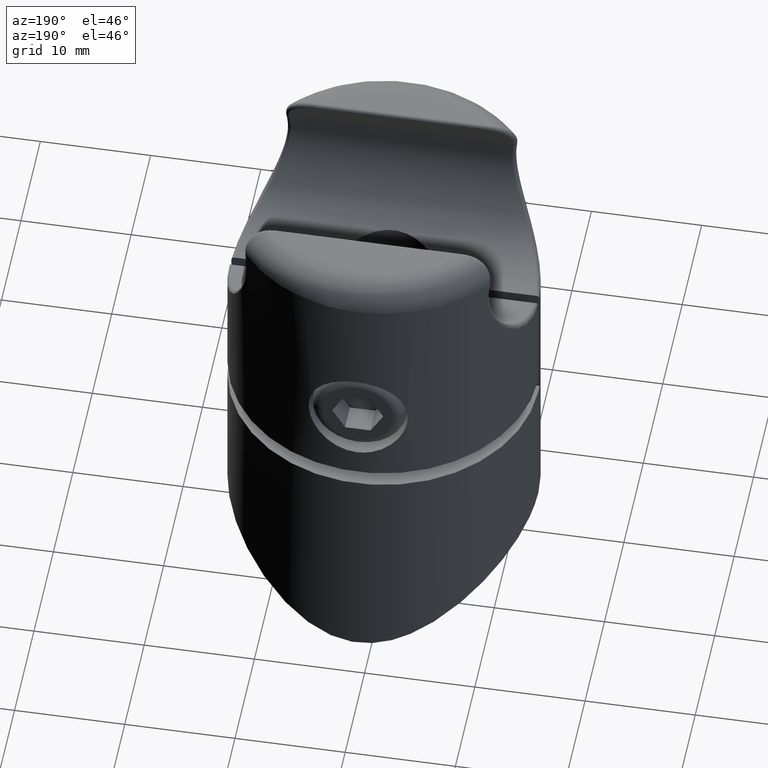
[diagram: clean part render]
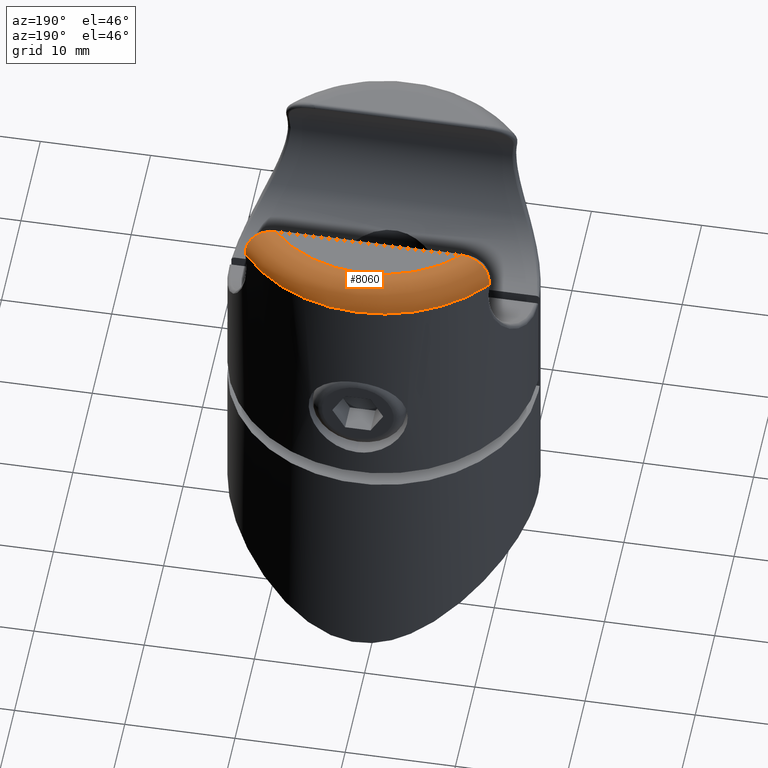
[diagram: same view with one face highlighted and labeled with its STEP entity id]
A machine part, auxiliary view. The second image highlights one B-rep face of the part: STEP entity #8060.
In plain terms, the highlighted toroidal blend (fillet) surface has major radius 11.5 mm and minor (blend) radius 2.5 mm.
Its self-contained STEP definition (entity closure, byte-faithful):
#166 = CARTESIAN_POINT ( 'NONE',  ( 10.79288158389544883, 9.065144072261254848, 10.32912315424133887 ) ) ;
#819 = ORIENTED_EDGE ( 'NONE', *, *, #4711, .F. ) ;
#1218 = CARTESIAN_POINT ( 'NONE',  ( 8.466754833147170700, 8.532291603080610187, 11.50000000000000000 ) ) ;
#1313 = CARTESIAN_POINT ( 'NONE',  ( -9.814852339705613105, 8.718293764479653873, 11.22984488960592131 ) ) ;
#1552 = ORIENTED_EDGE ( 'NONE', *, *, #13336, .T. ) ;
#1706 = CARTESIAN_POINT ( 'NONE',  ( 11.02121479887277822, 9.236315168775313111, 9.687781927357638878 ) ) ;
#1977 = VERTEX_POINT ( 'NONE', #5194 ) ;
#1982 = CARTESIAN_POINT ( 'NONE',  ( 8.466754833147170700, 8.532291603080610187, 11.50000000000000000 ) ) ;
#2039 = AXIS2_PLACEMENT_3D ( 'NONE', #15956, #7603, #9139 ) ;
#2909 = CARTESIAN_POINT ( 'NONE',  ( -11.03719900984944680, 9.362795017703506417, 9.000000000000001776 ) ) ;
#3309 = CARTESIAN_POINT ( 'NONE',  ( 11.03719900984943969, 9.362795017703513523, 9.000000000000001776 ) ) ;
#3370 = CARTESIAN_POINT ( 'NONE',  ( 9.649223412738290762, 8.682027269470601993, 11.30046964619617356 ) ) ;
#3417 = CARTESIAN_POINT ( 'NONE',  ( 0.000000000000000000, 0.7500000000000000000, 9.000000000000001776 ) ) ;
#3576 = CARTESIAN_POINT ( 'NONE',  ( 10.10656865037738150, 8.794226148229530082, 11.06606465844469511 ) ) ;
#3686 = DIRECTION ( 'NONE',  ( 1.000000000000000000, 0.000000000000000000, 0.000000000000000000 ) ) ;
#3907 = EDGE_CURVE ( 'NONE', #1977, #11324, #13389, .T. ) ;
#4699 = ORIENTED_EDGE ( 'NONE', *, *, #3907, .F. ) ;
#4711 = EDGE_CURVE ( 'NONE', #18486, #9964, #13640, .T. ) ;
#4721 = CARTESIAN_POINT ( 'NONE',  ( -10.60895538264376192, 8.974115481312297860, 10.60663100609582088 ) ) ;
#5120 = CARTESIAN_POINT ( 'NONE',  ( 9.158051503136826810, 8.593086780076012232, 11.45663955568875991 ) ) ;
#5194 = CARTESIAN_POINT ( 'NONE',  ( -11.03719900984944680, 9.362795017703506417, 9.000000000000001776 ) ) ;
#5195 = CARTESIAN_POINT ( 'NONE',  ( 10.24618007103731543, 8.837040630340815994, 10.96648265723516680 ) ) ;
#6205 = CARTESIAN_POINT ( 'NONE',  ( -10.87112798971560856, 9.112169288140984591, 10.17177599557661871 ) ) ;
#6343 = CARTESIAN_POINT ( 'NONE',  ( -8.466754833147170700, 8.532291603080610187, 11.50000000000000000 ) ) ;
#6528 = EDGE_CURVE ( 'NONE', #1977, #9964, #7760, .T. ) ;
#6853 = DIRECTION ( 'NONE',  ( 0.000000000000000000, 0.000000000000000000, 1.000000000000000000 ) ) ;
#7316 = FACE_OUTER_BOUND ( 'NONE', #20763, .T. ) ;
#7603 = DIRECTION ( 'NONE',  ( 0.000000000000000000, 0.000000000000000000, 1.000000000000000000 ) ) ;
#7760 = B_SPLINE_CURVE_WITH_KNOTS ( 'NONE', 3,
 ( #2909, #20466, #10889, #11084, #15786, #6205, #14334, #4721, #9370, #7827, #15851, #1313, #15915, #12513, #19003, #6343 ),
 .UNSPECIFIED., .F., .F.,
 ( 4, 2, 2, 2, 2, 2, 2, 4 ),
 ( 0.000000000000000000, 0.0005219753101093671565, 0.001043950620218734313, 0.001565925930328101361, 0.002087901240437468626, 0.002609876550546835674, 0.003131851860656202722, 0.004175802480874929445 ),
 .UNSPECIFIED. ) ;
#7827 = CARTESIAN_POINT ( 'NONE',  ( -10.25078203701051294, 8.838549626699769846, 10.96282175228682831 ) ) ;
#8060 = ADVANCED_FACE ( 'NONE', ( #7316 ), #13584, .T. ) ;
#8435 = CARTESIAN_POINT ( 'NONE',  ( 10.86966430622147683, 9.111213539777727632, 10.17512885846083215 ) ) ;
#8468 = CARTESIAN_POINT ( 'NONE',  ( 0.000000000000000000, 0.7500000000000000000, 11.50000000000000000 ) ) ;
#9139 = DIRECTION ( 'NONE',  ( 1.000000000000000000, 0.000000000000000000, 0.000000000000000000 ) ) ;
#9370 = CARTESIAN_POINT ( 'NONE',  ( -10.49981286710186623, 8.927988429942702808, 10.73410939872744230 ) ) ;
#9770 = CARTESIAN_POINT ( 'NONE',  ( 9.809771163543089756, 8.717109880793389109, 11.23224071819472591 ) ) ;
#9877 = DIRECTION ( 'NONE',  ( 1.000000000000000000, 0.000000000000000000, 0.000000000000000000 ) ) ;
#9964 = VERTEX_POINT ( 'NONE', #11361 ) ;
#10618 = AXIS2_PLACEMENT_3D ( 'NONE', #3417, #11545, #9877 ) ;
#10889 = CARTESIAN_POINT ( 'NONE',  ( -11.05797561451979227, 9.307025603373720202, 9.344849828935062774 ) ) ;
#11084 = CARTESIAN_POINT ( 'NONE',  ( -11.02173565274229539, 9.237035643508455962, 9.684501492606768736 ) ) ;
#11324 = VERTEX_POINT ( 'NONE', #16640 ) ;
#11361 = CARTESIAN_POINT ( 'NONE',  ( -8.466754833147170700, 8.532291603080610187, 11.50000000000000000 ) ) ;
#11545 = DIRECTION ( 'NONE',  ( -0.000000000000000000, -0.000000000000000000, -1.000000000000000000 ) ) ;
#12354 = B_SPLINE_CURVE_WITH_KNOTS ( 'NONE', 3,
 ( #1982, #13182, #5120, #3370, #9770, #3576, #5195, #16404, #18021, #166, #8435, #19608, #1706, #16192, #12909, #3309 ),
 .UNSPECIFIED., .F., .F.,
 ( 4, 2, 2, 2, 2, 2, 2, 4 ),
 ( 0.000000000000000000, 0.001035829753570902774, 0.001553744630356357088, 0.002071659507141812052, 0.002589574383927266583, 0.003107489260712720681, 0.003625404137498175645, 0.004143319014283630176 ),
 .UNSPECIFIED. ) ;
#12513 = CARTESIAN_POINT ( 'NONE',  ( -9.163805546444317329, 8.593856840829834809, 11.45559264629888396 ) ) ;
#12909 = CARTESIAN_POINT ( 'NONE',  ( 11.05711906125666033, 9.337267698033659968, 9.173693271957507278 ) ) ;
#13182 = CARTESIAN_POINT ( 'NONE',  ( 8.817270282547946536, 8.554466639361033131, 11.49999999999999645 ) ) ;
#13308 = AXIS2_PLACEMENT_3D ( 'NONE', #8468, #6853, #3686 ) ;
#13336 = EDGE_CURVE ( 'NONE', #18486, #11324, #12354, .T. ) ;
#13389 = CIRCLE ( 'NONE', #10618, 13.99999999999999822 ) ;
#13584 = TOROIDAL_SURFACE ( 'NONE', #2039, 11.49999999999999822, 2.500000000000000000 ) ;
#13640 = CIRCLE ( 'NONE', #13308, 11.49999999999999822 ) ;
#14334 = CARTESIAN_POINT ( 'NONE',  ( -10.79580733560015737, 9.066755128019851284, 10.32394076179490838 ) ) ;
#15338 = ORIENTED_EDGE ( 'NONE', *, *, #6528, .T. ) ;
#15786 = CARTESIAN_POINT ( 'NONE',  ( -10.98374148882341039, 9.196938394144167361, 9.853665754162953760 ) ) ;
#15851 = CARTESIAN_POINT ( 'NONE',  ( -10.11109779590776370, 8.795543787498461441, 11.06306489978331697 ) ) ;
#15915 = CARTESIAN_POINT ( 'NONE',  ( -9.655023835364469065, 8.683217166678389276, 11.29822362210423137 ) ) ;
#15956 = CARTESIAN_POINT ( 'NONE',  ( 0.000000000000000000, 0.7500000000000000000, 9.000000000000001776 ) ) ;
#16192 = CARTESIAN_POINT ( 'NONE',  ( 11.05802306987725103, 9.306835471305680230, 9.345985671966444031 ) ) ;
#16404 = CARTESIAN_POINT ( 'NONE',  ( 10.49687311633489273, 8.926793102845328676, 10.73735809748706238 ) ) ;
#16640 = CARTESIAN_POINT ( 'NONE',  ( 11.03719900984943969, 9.362795017703513523, 9.000000000000001776 ) ) ;
#18021 = CARTESIAN_POINT ( 'NONE',  ( 10.60618746840155957, 8.972908643261357398, 10.61003916195169339 ) ) ;
#18486 = VERTEX_POINT ( 'NONE', #1218 ) ;
#19003 = CARTESIAN_POINT ( 'NONE',  ( -8.817433173778184141, 8.554476944523806026, 11.50000000000130207 ) ) ;
#19608 = CARTESIAN_POINT ( 'NONE',  ( 10.98303804685867746, 9.196265622804833839, 9.856419747914939578 ) ) ;
#20466 = CARTESIAN_POINT ( 'NONE',  ( -11.05707385804767284, 9.337325625432651321, 9.173299121706000037 ) ) ;
#20763 = EDGE_LOOP ( 'NONE', ( #4699, #15338, #819, #1552 ) ) ;